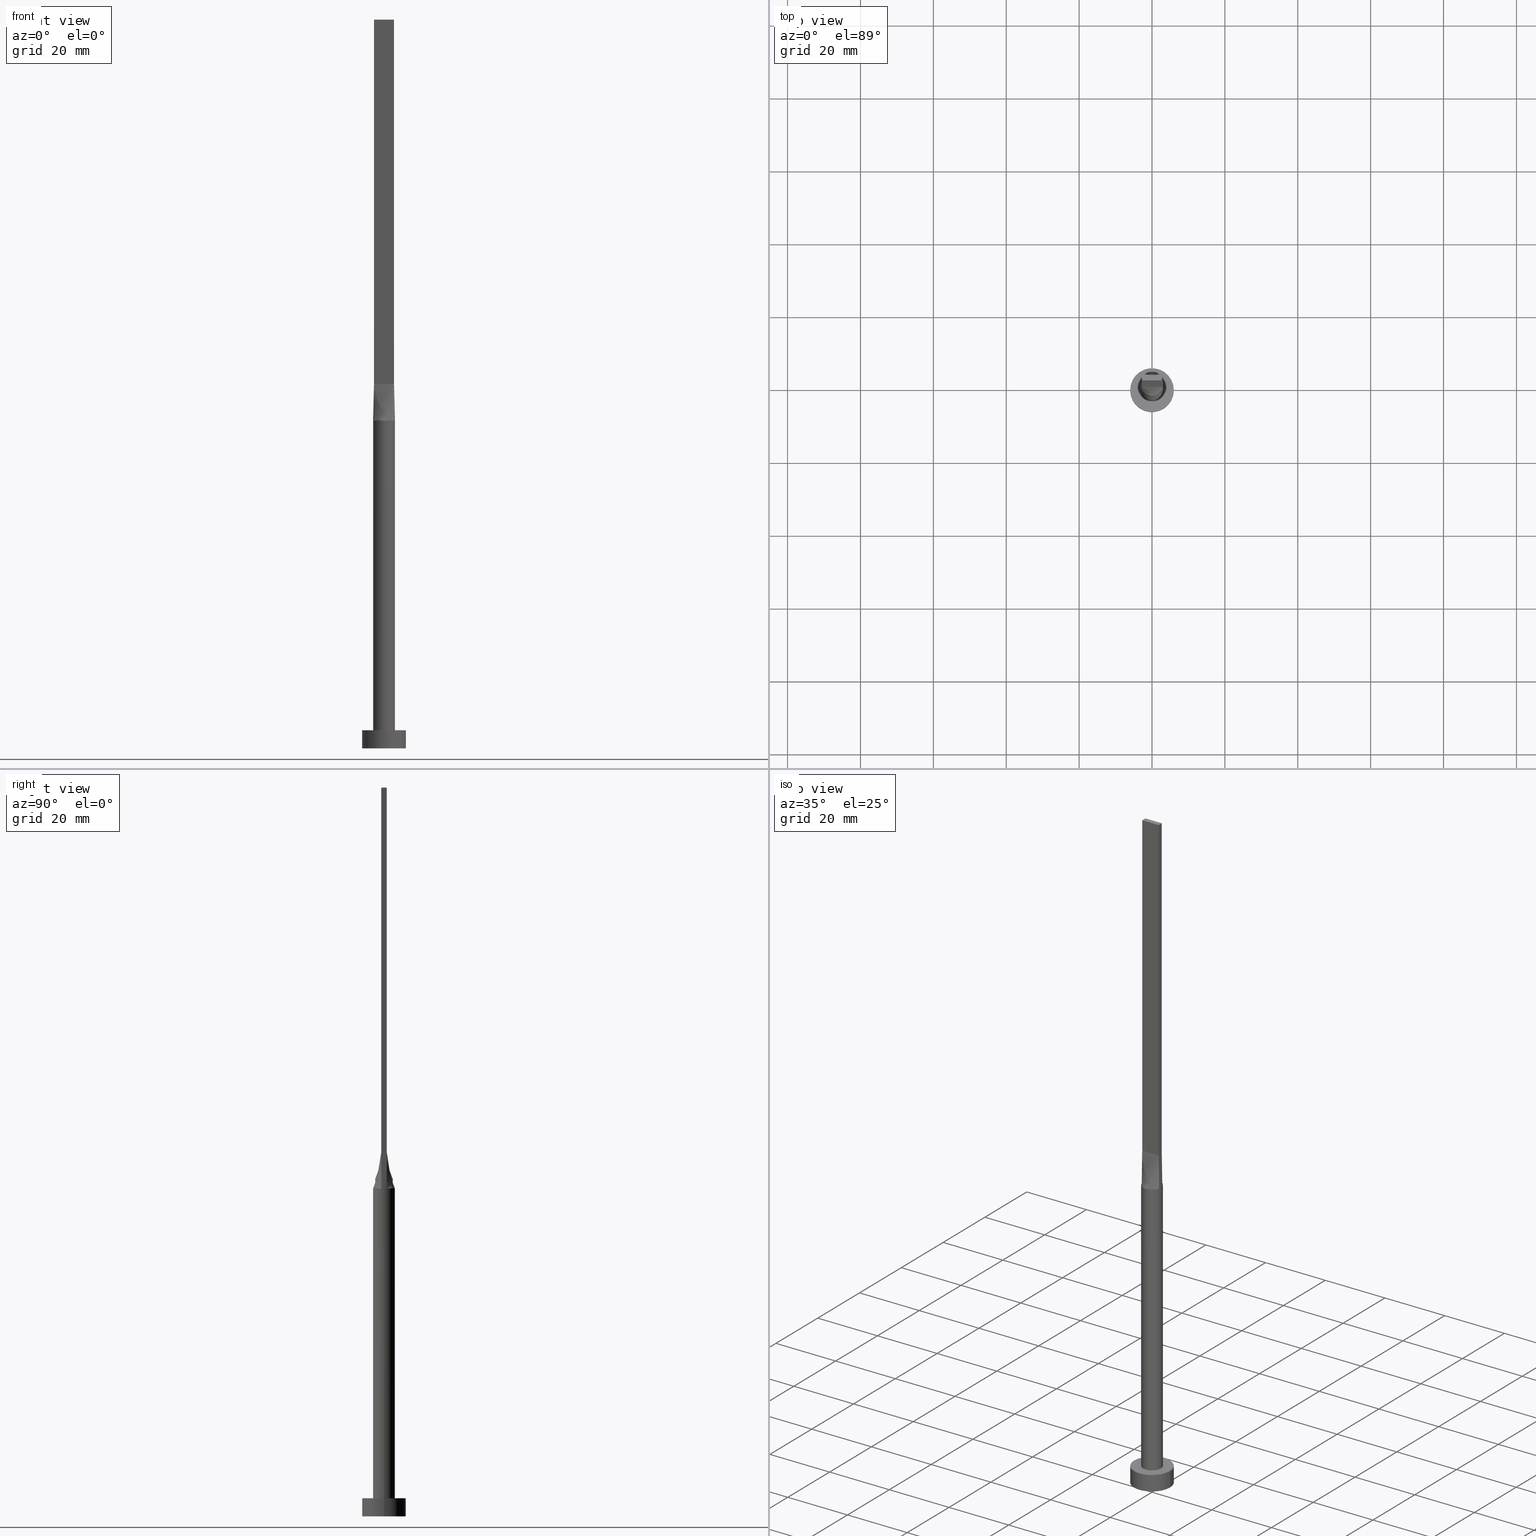
[diagram: canonical four-view strip — front | top / right | iso, engineering-drawing reading convention]
A machine part, canonical four-view strip (front | top / right | iso — engineering-drawing reading convention). The complete STEP part file that produces these views, byte-faithful:
ISO-10303-21;
HEADER;
FILE_DESCRIPTION (( 'STEP AP203' ),
    '1' );
FILE_NAME ('d9ba.STEP',
    '2023-02-13T11:39:15',
    ( '' ),
    ( '' ),
    'SwSTEP 2.0',
    'SolidWorks 2019',
    '' );
FILE_SCHEMA (( 'CONFIG_CONTROL_DESIGN' ));
ENDSEC;

DATA;
#1 = DIRECTION ( 'NONE',  ( 0.000000000000000000, 0.000000000000000000, 1.000000000000000000 ) ) ;
#2 = CARTESIAN_POINT ( 'NONE',  ( 0.2291666666666662966, 0.7500000000000003331, 100.0000000000000142 ) ) ;
#3 = DIRECTION ( 'NONE',  ( 1.000000000000000000, 0.000000000000000000, 0.000000000000000000 ) ) ;
#4 = ORIENTED_EDGE ( 'NONE', *, *, #194, .F. ) ;
#5 = CARTESIAN_POINT ( 'NONE',  ( -0.7628506052746809596, -2.924692134573154245, 90.00000000000001421 ) ) ;
#6 = CARTESIAN_POINT ( 'NONE',  ( -2.894291463713196677, 0.7893522173763264371, 90.00000000000001421 ) ) ;
#7 = EDGE_LOOP ( 'NONE', ( #388, #122, #519, #390, #51, #459 ) ) ;
#8 = ADVANCED_FACE ( 'NONE', ( #163 ), #514, .T. ) ;
#9 = CLOSED_SHELL ( 'NONE', ( #581, #8, #391, #442, #297, #436, #332, #540, #89, #272, #533, #147, #170, #230, #54 ) ) ;
#10 = CARTESIAN_POINT ( 'NONE',  ( -2.750000000000000000, -0.7499999999999994449, 100.0000000000000000 ) ) ;
#11 = DIRECTION ( 'NONE',  ( 0.000000000000000000, -1.000000000000000000, 0.000000000000000000 ) ) ;
#12 = CIRCLE ( 'NONE', #311, 3.000000000000000444 ) ;
#13 = ORIENTED_EDGE ( 'NONE', *, *, #348, .T. ) ;
#14 = LINE ( 'NONE', #339, #76 ) ;
#15 = CARTESIAN_POINT ( 'NONE',  ( 6.000000000000000888, 7.347880794884120722E-16, 0.000000000000000000 ) ) ;
#16 = PLANE ( 'NONE',  #145 ) ;
#17 = EDGE_LOOP ( 'NONE', ( #226, #577, #25, #137 ) ) ;
#18 = CARTESIAN_POINT ( 'NONE',  ( 0.2291666666666698216, -0.7499999999999995559, 100.0000000000000142 ) ) ;
#19 = COORDINATED_UNIVERSAL_TIME_OFFSET ( 1, 0, .AHEAD. ) ;
#20 = LINE ( 'NONE', #211, #446 ) ;
#21 = CARTESIAN_POINT ( 'NONE',  ( -2.894291463713196677, 0.7893522173763257710, 90.00000000000001421 ) ) ;
#22 = AXIS2_PLACEMENT_3D ( 'NONE', #56, #431, #24 ) ;
#23 = CALENDAR_DATE ( 2023, 13, 2 ) ;
#24 = DIRECTION ( 'NONE',  ( -0.000000000000000000, 0.000000000000000000, -1.000000000000000000 ) ) ;
#25 = ORIENTED_EDGE ( 'NONE', *, *, #220, .F. ) ;
#26 = CARTESIAN_POINT ( 'NONE',  ( 3.000000000000000888, -0.2678361673275873600, 90.00000000000001421 ) ) ;
#27 = SECURITY_CLASSIFICATION ( '', '', #382 ) ;
#28 = CARTESIAN_POINT ( 'NONE',  ( -2.750000000000000000, 0.7500000000000002220, 200.0000000000000000 ) ) ;
#29 = DIRECTION ( 'NONE',  ( -1.000000000000000000, 0.000000000000000000, 0.000000000000000000 ) ) ;
#30 = EDGE_CURVE ( 'NONE', #117, #336, #474, .T. ) ;
#31 = CARTESIAN_POINT ( 'NONE',  ( 0.000000000000000000, 0.000000000000000000, 90.00000000000001421 ) ) ;
#32 = APPROVAL_PERSON_ORGANIZATION ( #80, #522, #464 ) ;
#33 = CYLINDRICAL_SURFACE ( 'NONE', #500, 3.000000000000000444 ) ;
#34 = CARTESIAN_POINT ( 'NONE',  ( 2.442412046818594362, -1.765588549521970751, 90.00000000000002842 ) ) ;
#35 = DATE_AND_TIME ( #133, #111 ) ;
#36 = EDGE_CURVE ( 'NONE', #101, #415, #276, .T. ) ;
#37 = VECTOR ( 'NONE', #341, 1000.000000000000114 ) ;
#38 = ORIENTED_EDGE ( 'NONE', *, *, #106, .F. ) ;
#39 = CARTESIAN_POINT ( 'NONE',  ( 0.000000000000000000, 0.000000000000000000, 90.00000000000001421 ) ) ;
#40 = AXIS2_PLACEMENT_3D ( 'NONE', #387, #398, #173 ) ;
#41 = CARTESIAN_POINT ( 'NONE',  ( -1.447928580458858416, 2.653161878569119558, 90.00000000000004263 ) ) ;
#42 = LINE ( 'NONE', #233, #318 ) ;
#43 = APPROVAL ( #559, 'NEUR�EN�' ) ;
#44 = PERSON ( 'NEUR�EN�', 'NEUR�EN�', 'NEUR�EN�', ('NEUR�EN�'), ('NEUR�EN�'), ('NEUR�EN�') ) ;
#45 = DIRECTION ( 'NONE',  ( -1.000000000000000000, 0.000000000000000000, 0.000000000000000000 ) ) ;
#46 = CARTESIAN_POINT ( 'NONE',  ( -2.733316749964668002, 1.269511353635830453, 90.00000000000004263 ) ) ;
#47 = CARTESIAN_POINT ( 'NONE',  ( -2.750000000000000000, -0.2499999999999992506, 100.0000000000000000 ) ) ;
#48 = CARTESIAN_POINT ( 'NONE',  ( 0.000000000000000000, 0.000000000000000000, 5.000000000000000000 ) ) ;
#49 = AXIS2_PLACEMENT_3D ( 'NONE', #511, #328, #105 ) ;
#50 = CC_DESIGN_APPROVAL ( #522, ( #408 ) ) ;
#51 = ORIENTED_EDGE ( 'NONE', *, *, #82, .F. ) ;
#52 = CARTESIAN_POINT ( 'NONE',  ( -2.733316749964668446, -1.269511353635829787, 90.00000000000002842 ) ) ;
#53 = CARTESIAN_POINT ( 'NONE',  ( -2.750000000000000000, -0.4999999999999992784, 100.0000000000000000 ) ) ;
#54 = ADVANCED_FACE ( 'NONE', ( #367 ), #407, .T. ) ;
#55 = FACE_OUTER_BOUND ( 'NONE', #454, .T. ) ;
#56 = CARTESIAN_POINT ( 'NONE',  ( -2.750000000000000000, 0.7500000000000002220, 200.0000000000000000 ) ) ;
#57 = CARTESIAN_POINT ( 'NONE',  ( 2.442412046818595250, 1.765588549521970529, 90.00000000000004263 ) ) ;
#58 = LINE ( 'NONE', #10, #455 ) ;
#59 = LINE ( 'NONE', #252, #324 ) ;
#60 = VECTOR ( 'NONE', #362, 1000.000000000000000 ) ;
#61 = DIRECTION ( 'NONE',  ( 0.000000000000000000, -1.000000000000000000, 0.000000000000000000 ) ) ;
#62 = ORIENTED_EDGE ( 'NONE', *, *, #187, .T. ) ;
#63 = EDGE_CURVE ( 'NONE', #415, #338, #100, .T. ) ;
#64 = DIRECTION ( 'NONE',  ( 1.000000000000000000, -5.913830031739115543E-17, 0.000000000000000000 ) ) ;
#65 = DIRECTION ( 'NONE',  ( 0.000000000000000000, 1.000000000000000000, 0.000000000000000000 ) ) ;
#66 = ORIENTED_EDGE ( 'NONE', *, *, #204, .F. ) ;
#67 = FACE_OUTER_BOUND ( 'NONE', #401, .T. ) ;
#68 = ORIENTED_EDGE ( 'NONE', *, *, #319, .F. ) ;
#69 = UNCERTAINTY_MEASURE_WITH_UNIT (LENGTH_MEASURE( 1.000000000000000082E-05 ), #91, 'distance_accuracy_value', 'NONE');
#70 = CARTESIAN_POINT ( 'NONE',  ( 2.248179627679384840, -2.014142483996542055, 90.00000000000001421 ) ) ;
#71 = ORIENTED_EDGE ( 'NONE', *, *, #319, .T. ) ;
#72 = DIRECTION ( 'NONE',  ( -0.000000000000000000, -0.000000000000000000, -1.000000000000000000 ) ) ;
#73 = DATE_AND_TIME ( #349, #530 ) ;
#74 = CARTESIAN_POINT ( 'NONE',  ( 2.894482401701604424, 0.7894050286368272662, 90.00000000000001421 ) ) ;
#75 = LINE ( 'NONE', #28, #95 ) ;
#76 = VECTOR ( 'NONE', #113, 1000.000000000000000 ) ;
#77 = ORIENTED_EDGE ( 'NONE', *, *, #399, .F. ) ;
#78 = AXIS2_PLACEMENT_3D ( 'NONE', #576, #350, #268 ) ;
#79 = CARTESIAN_POINT ( 'NONE',  ( -2.750000000000000000, 0.7500000000000002220, 100.0000000000000000 ) ) ;
#80 = PERSON_AND_ORGANIZATION ( #44, #478 ) ;
#81 = FACE_OUTER_BOUND ( 'NONE', #164, .T. ) ;
#82 = EDGE_CURVE ( 'NONE', #415, #153, #200, .T. ) ;
#83 = B_SPLINE_SURFACE_WITH_KNOTS ( 'NONE', 3, 1, ( 
 ( #517, #245 ),
 ( #118, #381 ),
 ( #52, #417 ),
 ( #301, #298 ),
 ( #376, #547 ),
 ( #156, #330 ),
 ( #416, #108 ),
 ( #5, #507 ),
 ( #426, #292 ),
 ( #251, #18 ),
 ( #198, #369 ),
 ( #207, #378 ),
 ( #550, #333 ),
 ( #70, #209 ),
 ( #34, #483 ),
 ( #86, #392 ),
 ( #181, #132 ),
 ( #171, #355 ) ),
 .UNSPECIFIED., .F., .F., .F.,
 ( 4, 2, 2, 2, 2, 2, 2, 2, 4 ),
 ( 2, 2 ),
 ( 0.000000000000000000, 0.1250000000000000000, 0.2500000000000000000, 0.3750000000000000000, 0.5000000000000000000, 0.6250000000000000000, 0.7500000000000000000, 0.8750000000000000000, 1.000000000000000000 ),
 ( 0.000000000000000000, 1.000000000000000000 ),
 .UNSPECIFIED. ) ;
#84 = DIRECTION ( 'NONE',  ( 1.000000000000000000, -5.329070518200751394E-15, 0.000000000000000000 ) ) ;
#85 = APPROVAL_STATUS ( 'not_yet_approved' ) ;
#86 = CARTESIAN_POINT ( 'NONE',  ( 2.733316749964666670, -1.269511353635832229, 90.00000000000004263 ) ) ;
#87 = ORIENTED_EDGE ( 'NONE', *, *, #98, .T. ) ;
#88 = AXIS2_PLACEMENT_3D ( 'NONE', #90, #29, #413 ) ;
#89 = ADVANCED_FACE ( 'NONE', ( #410 ), #473, .T. ) ;
#90 = CARTESIAN_POINT ( 'NONE',  ( 2.750000000000000000, -0.7499999999999997780, 200.0000000000000000 ) ) ;
#91 =( LENGTH_UNIT ( ) NAMED_UNIT ( * ) SI_UNIT ( .MILLI., .METRE. ) );
#92 = DIRECTION ( 'NONE',  ( 1.000000000000000000, 0.000000000000000000, 0.000000000000000000 ) ) ;
#93 = CARTESIAN_POINT ( 'NONE',  ( 0.4583333333333330373, 0.7500000000000003331, 100.0000000000000142 ) ) ;
#94 = DIRECTION ( 'NONE',  ( 1.000000000000000000, 0.000000000000000000, 0.000000000000000000 ) ) ;
#95 = VECTOR ( 'NONE', #61, 1000.000000000000000 ) ;
#96 = CARTESIAN_POINT ( 'NONE',  ( 2.291666666666666519, 0.7500000000000002220, 100.0000000000000000 ) ) ;
#97 = CARTESIAN_POINT ( 'NONE',  ( -2.750000000000000000, 0.7500000000000002220, 100.0000000000000000 ) ) ;
#98 = EDGE_CURVE ( 'NONE', #185, #174, #246, .T. ) ;
#99 = CARTESIAN_POINT ( 'NONE',  ( 2.520833333333333037, 0.7500000000000002220, 100.0000000000000000 ) ) ;
#100 = LINE ( 'NONE', #237, #177 ) ;
#101 = VERTEX_POINT ( 'NONE', #448 ) ;
#102 = CARTESIAN_POINT ( 'NONE',  ( 0.3818979204996085230, 3.000000000000001332, 90.00000000000001421 ) ) ;
#103 = CARTESIAN_POINT ( 'NONE',  ( -2.963522232943966106, -0.5355060635301720495, 90.00000000000002842 ) ) ;
#104 = CARTESIAN_POINT ( 'NONE',  ( -2.750000000000000000, -0.7499999999999994449, 200.0000000000000000 ) ) ;
#105 = DIRECTION ( 'NONE',  ( 1.000000000000000000, 0.000000000000000000, -0.000000000000000000 ) ) ;
#106 = EDGE_CURVE ( 'NONE', #463, #338, #42, .T. ) ;
#107 = ORIENTED_EDGE ( 'NONE', *, *, #123, .F. ) ;
#108 = CARTESIAN_POINT ( 'NONE',  ( -0.9166666666666638541, -0.7499999999999995559, 100.0000000000000142 ) ) ;
#109 = APPLICATION_PROTOCOL_DEFINITION ( 'international standard', 'config_control_design', 1994, #293 ) ;
#110 = EDGE_LOOP ( 'NONE', ( #215, #107, #425, #515 ) ) ;
#111 = LOCAL_TIME ( 12, 39, 15.00000000000000000, #274 ) ;
#112 = CARTESIAN_POINT ( 'NONE',  ( 3.000000000000000444, 3.673940397442060361E-16, 90.00000000000001421 ) ) ;
#113 = DIRECTION ( 'NONE',  ( -0.000000000000000000, -0.000000000000000000, -1.000000000000000000 ) ) ;
#114 = COORDINATED_UNIVERSAL_TIME_OFFSET ( 1, 0, .AHEAD. ) ;
#115 = FACE_OUTER_BOUND ( 'NONE', #110, .T. ) ;
#116 = FACE_BOUND ( 'NONE', #253, .T. ) ;
#117 = VERTEX_POINT ( 'NONE', #513 ) ;
#118 = CARTESIAN_POINT ( 'NONE',  ( -2.830829925251658885, -1.022044525068633858, 90.00000000000001421 ) ) ;
#119 = DATE_AND_TIME ( #335, #294 ) ;
#120 = DIRECTION ( 'NONE',  ( -0.000000000000000000, -0.000000000000000000, -1.000000000000000000 ) ) ;
#121 = CARTESIAN_POINT ( 'NONE',  ( 2.750000000000000000, -0.7499999999999997780, 200.0000000000000000 ) ) ;
#122 = ORIENTED_EDGE ( 'NONE', *, *, #543, .T. ) ;
#123 = EDGE_CURVE ( 'NONE', #307, #190, #503, .T. ) ;
#124 = PERSON_AND_ORGANIZATION_ROLE ( 'classification_officer' ) ;
#125 = CARTESIAN_POINT ( 'NONE',  ( 2.750000000000000000, 0.7500000000000002220, 200.0000000000000000 ) ) ;
#126 = CARTESIAN_POINT ( 'NONE',  ( 2.750000000000000000, 0.7500000000000002220, 200.0000000000000000 ) ) ;
#127 = VECTOR ( 'NONE', #290, 1000.000000000000000 ) ;
#128 = ORIENTED_EDGE ( 'NONE', *, *, #180, .F. ) ;
#129 = APPLICATION_PROTOCOL_DEFINITION ( 'international standard', 'config_control_design', 1994, #217 ) ;
#130 = DIRECTION ( 'NONE',  ( 1.000000000000000000, 0.000000000000000000, 0.000000000000000000 ) ) ;
#131 = VERTEX_POINT ( 'NONE', #15 ) ;
#132 = CARTESIAN_POINT ( 'NONE',  ( 2.520833333333333481, -0.7499999999999997780, 100.0000000000000000 ) ) ;
#133 = CALENDAR_DATE ( 2023, 13, 2 ) ;
#134 = CARTESIAN_POINT ( 'NONE',  ( -1.751288851749021491, 2.458468820606022565, 89.99999999999998579 ) ) ;
#135 = EDGE_CURVE ( 'NONE', #440, #300, #257, .T. ) ;
#136 = ORIENTED_EDGE ( 'NONE', *, *, #152, .F. ) ;
#137 = ORIENTED_EDGE ( 'NONE', *, *, #449, .T. ) ;
#138 = CIRCLE ( 'NONE', #231, 6.000000000000000888 ) ;
#139 = APPROVAL_DATE_TIME ( #35, #43 ) ;
#140 = ORIENTED_EDGE ( 'NONE', *, *, #135, .T. ) ;
#141 = CARTESIAN_POINT ( 'NONE',  ( 1.604166666666666519, 0.7500000000000002220, 100.0000000000000000 ) ) ;
#142 = DIRECTION ( 'NONE',  ( 0.000000000000000000, 0.000000000000000000, 1.000000000000000000 ) ) ;
#143 = EDGE_CURVE ( 'NONE', #153, #185, #59, .T. ) ;
#144 = CARTESIAN_POINT ( 'NONE',  ( -2.894506632021299541, 0.7894116946786272626, 90.00000000000001421 ) ) ;
#145 = AXIS2_PLACEMENT_3D ( 'NONE', #389, #208, #553 ) ;
#146 = CARTESIAN_POINT ( 'NONE',  ( 2.750000000000000000, 0.7500000000000002220, 100.0000000000000000 ) ) ;
#147 = ADVANCED_FACE ( 'NONE', ( #115 ), #427, .F. ) ;
#148 = DIRECTION ( 'NONE',  ( 1.000000000000000000, 0.000000000000000000, 0.000000000000000000 ) ) ;
#149 = ORIENTED_EDGE ( 'NONE', *, *, #543, .F. ) ;
#150 = DIRECTION ( 'NONE',  ( -0.000000000000000000, -0.000000000000000000, -1.000000000000000000 ) ) ;
#151 = CARTESIAN_POINT ( 'NONE',  ( -2.830829925251659329, 1.022044525068634302, 90.00000000000005684 ) ) ;
#152 = EDGE_CURVE ( 'NONE', #338, #190, #20, .T. ) ;
#153 = VERTEX_POINT ( 'NONE', #472 ) ;
#154 = CARTESIAN_POINT ( 'NONE',  ( 3.000000000000000444, 0.2678361673275868049, 90.00000000000001421 ) ) ;
#155 = ORIENTED_EDGE ( 'NONE', *, *, #63, .T. ) ;
#156 = CARTESIAN_POINT ( 'NONE',  ( -1.751288851749022379, -2.458468820606022565, 90.00000000000001421 ) ) ;
#157 = ORIENTED_EDGE ( 'NONE', *, *, #491, .F. ) ;
#158 = CARTESIAN_POINT ( 'NONE',  ( 2.750000000000000000, 0.7500000000000002220, 100.0000000000000000 ) ) ;
#159 = ORIENTED_EDGE ( 'NONE', *, *, #348, .F. ) ;
#160 = PERSON_AND_ORGANIZATION_ROLE ( 'design_owner' ) ;
#161 = DIRECTION ( 'NONE',  ( -1.000000000000000000, -0.000000000000000000, -0.000000000000000000 ) ) ;
#162 = AXIS2_PLACEMENT_3D ( 'NONE', #337, #254, #346 ) ;
#163 = FACE_OUTER_BOUND ( 'NONE', #176, .T. ) ;
#164 = EDGE_LOOP ( 'NONE', ( #498, #560, #405, #510 ) ) ;
#165 = CARTESIAN_POINT ( 'NONE',  ( 2.750000000000000000, 0.7500000000000002220, 200.0000000000000000 ) ) ;
#166 = COORDINATED_UNIVERSAL_TIME_OFFSET ( 1, 0, .AHEAD. ) ;
#167 = CARTESIAN_POINT ( 'NONE',  ( -2.750000000000000000, -0.7499999999999994449, 200.0000000000000000 ) ) ;
#168 = EDGE_LOOP ( 'NONE', ( #149, #159, #528, #157, #506, #87 ) ) ;
#169 = DIRECTION ( 'NONE',  ( -1.000000000000000000, 0.000000000000000000, 0.000000000000000000 ) ) ;
#170 = ADVANCED_FACE ( 'NONE', ( #259 ), #383, .F. ) ;
#171 = CARTESIAN_POINT ( 'NONE',  ( 2.894291463713196677, -0.7893522173763275473, 90.00000000000001421 ) ) ;
#172 = DATE_AND_TIME ( #23, #420 ) ;
#173 = DIRECTION ( 'NONE',  ( 1.000000000000000000, 0.000000000000000000, 0.000000000000000000 ) ) ;
#174 = VERTEX_POINT ( 'NONE', #202 ) ;
#175 = CARTESIAN_POINT ( 'NONE',  ( 2.750000000000000000, -0.4999999999999992784, 100.0000000000000000 ) ) ;
#176 = EDGE_LOOP ( 'NONE', ( #444, #363, #525, #68 ) ) ;
#177 = VECTOR ( 'NONE', #495, 1000.000000000000114 ) ;
#178 = PERSON_AND_ORGANIZATION_ROLE ( 'design_supplier' ) ;
#179 = PERSON_AND_ORGANIZATION ( #44, #478 ) ;
#180 = EDGE_CURVE ( 'NONE', #307, #440, #373, .T. ) ;
#181 = CARTESIAN_POINT ( 'NONE',  ( 2.830829925251657997, -1.022044525068636078, 90.00000000000000000 ) ) ;
#182 = LINE ( 'NONE', #344, #239 ) ;
#183 = CARTESIAN_POINT ( 'NONE',  ( -2.750000000000000000, 0.7500000000000002220, 200.0000000000000000 ) ) ;
#184 = ADVANCED_BREP_SHAPE_REPRESENTATION ( 'd9ba', ( #244, #261 ), #541 ) ;
#185 = VERTEX_POINT ( 'NONE', #205 ) ;
#186 = VECTOR ( 'NONE', #465, 1000.000000000000000 ) ;
#187 = EDGE_CURVE ( 'NONE', #269, #101, #441, .T. ) ;
#188 = DIRECTION ( 'NONE',  ( 0.000000000000000000, 0.000000000000000000, 1.000000000000000000 ) ) ;
#189 = CARTESIAN_POINT ( 'NONE',  ( -2.999999999999999112, -0.2678361673275861388, 90.00000000000001421 ) ) ;
#190 = VERTEX_POINT ( 'NONE', #564 ) ;
#191 = CYLINDRICAL_SURFACE ( 'NONE', #566, 6.000000000000000888 ) ;
#192 = VECTOR ( 'NONE', #327, 1000.000000000000000 ) ;
#193 = CARTESIAN_POINT ( 'NONE',  ( -1.751288851749021491, 2.458468820606022565, 89.99999999999998579 ) ) ;
#194 = EDGE_CURVE ( 'NONE', #296, #131, #364, .T. ) ;
#195 = ORIENTED_EDGE ( 'NONE', *, *, #180, .T. ) ;
#196 = CARTESIAN_POINT ( 'NONE',  ( 2.894291463713197121, 0.7893522173763263261, 90.00000000000001421 ) ) ;
#197 = CARTESIAN_POINT ( 'NONE',  ( -2.894506632021299541, 0.7894116946786272626, 90.00000000000001421 ) ) ;
#198 = CARTESIAN_POINT ( 'NONE',  ( 0.7628506052746785171, -2.924692134573155577, 90.00000000000000000 ) ) ;
#199 = CARTESIAN_POINT ( 'NONE',  ( -2.750000000000000000, -0.7499999999999993339, 100.0000000000000000 ) ) ;
#200 = CIRCLE ( 'NONE', #284, 3.000000000000000444 ) ;
#201 = VECTOR ( 'NONE', #428, 1000.000000000000114 ) ;
#202 = CARTESIAN_POINT ( 'NONE',  ( 3.000000000000000444, 3.673940397442060361E-16, 5.000000000000000000 ) ) ;
#203 = CARTESIAN_POINT ( 'NONE',  ( 2.248179627679386172, 2.014142483996539834, 89.99999999999998579 ) ) ;
#204 = EDGE_CURVE ( 'NONE', #562, #359, #477, .T. ) ;
#205 = CARTESIAN_POINT ( 'NONE',  ( -3.000000000000000444, 0.000000000000000000, 5.000000000000000000 ) ) ;
#206 = CARTESIAN_POINT ( 'NONE',  ( 0.000000000000000000, 0.000000000000000000, 5.000000000000000000 ) ) ;
#207 = CARTESIAN_POINT ( 'NONE',  ( 1.447928580458857972, -2.653161878569119558, 90.00000000000001421 ) ) ;
#208 = DIRECTION ( 'NONE',  ( 0.000000000000000000, -1.000000000000000000, 0.000000000000000000 ) ) ;
#209 = CARTESIAN_POINT ( 'NONE',  ( 1.604166666666668961, -0.7499999999999997780, 100.0000000000000000 ) ) ;
#210 = PERSON_AND_ORGANIZATION ( #44, #478 ) ;
#211 = CARTESIAN_POINT ( 'NONE',  ( -2.750000000000000000, 0.7500000000000002220, 100.0000000000000000 ) ) ;
#212 = EDGE_CURVE ( 'NONE', #190, #314, #182, .T. ) ;
#213 = MECHANICAL_CONTEXT ( 'NONE', #293, 'mechanical' ) ;
#214 = B_SPLINE_SURFACE_WITH_KNOTS ( 'NONE', 3, 1, ( 
 ( #196, #146 ),
 ( #534, #99 ),
 ( #280, #96 ),
 ( #366, #236 ),
 ( #277, #141 ),
 ( #542, #322 ),
 ( #409, #315 ),
 ( #456, #93 ),
 ( #102, #2 ),
 ( #227, #402 ),
 ( #447, #573 ),
 ( #41, #451 ),
 ( #193, #406 ),
 ( #579, #360 ),
 ( #536, #450 ),
 ( #46, #287 ),
 ( #151, #430 ),
 ( #21, #466 ) ),
 .UNSPECIFIED., .F., .F., .F.,
 ( 4, 2, 2, 2, 2, 2, 2, 2, 4 ),
 ( 2, 2 ),
 ( 0.000000000000000000, 0.1250000000000000000, 0.2500000000000000000, 0.3750000000000000000, 0.5000000000000000000, 0.6250000000000000000, 0.7500000000000000000, 0.8750000000000000000, 1.000000000000000000 ),
 ( 0.000000000000000000, 1.000000000000000000 ),
 .UNSPECIFIED. ) ;
#215 = ORIENTED_EDGE ( 'NONE', *, *, #152, .T. ) ;
#216 = ORIENTED_EDGE ( 'NONE', *, *, #63, .F. ) ;
#217 = APPLICATION_CONTEXT ( 'configuration controlled 3d designs of mechanical parts and assemblies' ) ;
#218 = DIRECTION ( 'NONE',  ( 1.000000000000000000, 0.000000000000000000, 0.000000000000000000 ) ) ;
#219 = VECTOR ( 'NONE', #150, 1000.000000000000000 ) ;
#220 = EDGE_CURVE ( 'NONE', #300, #571, #486, .T. ) ;
#221 = B_SPLINE_SURFACE_WITH_KNOTS ( 'NONE', 3, 1, ( 
 ( #432, #508 ),
 ( #424, #175 ),
 ( #26, #394 ),
 ( #154, #380 ),
 ( #558, #505 ),
 ( #462, #158 ) ),
 .UNSPECIFIED., .F., .F., .F.,
 ( 4, 2, 4 ),
 ( 2, 2 ),
 ( 0.000000000000000000, 0.5000000000000000000, 1.000000000000000000 ),
 ( 0.000000000000000000, 1.000000000000000000 ),
 .UNSPECIFIED. ) ;
#222 = CARTESIAN_POINT ( 'NONE',  ( 0.000000000000000000, 0.000000000000000000, 0.000000000000000000 ) ) ;
#223 =( NAMED_UNIT ( * ) PLANE_ANGLE_UNIT ( ) SI_UNIT ( $, .RADIAN. ) );
#224 = CARTESIAN_POINT ( 'NONE',  ( 0.000000000000000000, 0.000000000000000000, 90.00000000000001421 ) ) ;
#225 = DIRECTION ( 'NONE',  ( -0.000000000000000000, -0.000000000000000000, -1.000000000000000000 ) ) ;
#226 = ORIENTED_EDGE ( 'NONE', *, *, #106, .T. ) ;
#227 = CARTESIAN_POINT ( 'NONE',  ( -0.3818979204996078569, 3.000000000000000888, 89.99999999999998579 ) ) ;
#228 = AXIS2_PLACEMENT_3D ( 'NONE', #206, #120, #468 ) ;
#229 = CARTESIAN_POINT ( 'NONE',  ( 0.3818979204996085230, 3.000000000000001332, 90.00000000000001421 ) ) ;
#230 = ADVANCED_FACE ( 'NONE', ( #81 ), #310, .F. ) ;
#231 = AXIS2_PLACEMENT_3D ( 'NONE', #282, #188, #3 ) ;
#232 = CARTESIAN_POINT ( 'NONE',  ( 6.000000000000000888, 7.347880794884120722E-16, 5.000000000000000000 ) ) ;
#233 = CARTESIAN_POINT ( 'NONE',  ( -2.750000000000000000, 0.7500000000000002220, 100.0000000000000000 ) ) ;
#234 = FACE_OUTER_BOUND ( 'NONE', #452, .T. ) ;
#235 = EDGE_CURVE ( 'NONE', #131, #296, #138, .T. ) ;
#236 = CARTESIAN_POINT ( 'NONE',  ( 1.833333333333333037, 0.7500000000000002220, 100.0000000000000000 ) ) ;
#237 = CARTESIAN_POINT ( 'NONE',  ( -2.822145731856598339, 0.7696761086881630520, 95.00000000000000000 ) ) ;
#238 = AXIS2_PLACEMENT_3D ( 'NONE', #479, #526, #130 ) ;
#239 = VECTOR ( 'NONE', #267, 1000.000000000000114 ) ;
#240 = CARTESIAN_POINT ( 'NONE',  ( -2.963522232943965662, 0.5355060635301726046, 89.99999999999998579 ) ) ;
#241 = ORIENTED_EDGE ( 'NONE', *, *, #491, .T. ) ;
#242 = CARTESIAN_POINT ( 'NONE',  ( -6.000000000000000888, 0.000000000000000000, 5.000000000000000000 ) ) ;
#243 = CARTESIAN_POINT ( 'NONE',  ( -2.894291463713197121, -0.7893522173763259930, 90.00000000000001421 ) ) ;
#244 = MANIFOLD_SOLID_BREP ( 'P�idat vysunut�m5', #9 ) ;
#245 = CARTESIAN_POINT ( 'NONE',  ( -2.750000000000000000, -0.7499999999999994449, 100.0000000000000000 ) ) ;
#246 = CIRCLE ( 'NONE', #485, 3.000000000000000444 ) ;
#247 = ORIENTED_EDGE ( 'NONE', *, *, #470, .T. ) ;
#248 = EDGE_CURVE ( 'NONE', #359, #562, #260, .T. ) ;
#249 = FACE_OUTER_BOUND ( 'NONE', #570, .T. ) ;
#250 = ORIENTED_EDGE ( 'NONE', *, *, #504, .T. ) ;
#251 = CARTESIAN_POINT ( 'NONE',  ( 0.3818979204996068022, -3.000000000000001332, 90.00000000000001421 ) ) ;
#252 = CARTESIAN_POINT ( 'NONE',  ( -3.000000000000000444, 0.000000000000000000, 90.00000000000001421 ) ) ;
#253 = EDGE_LOOP ( 'NONE', ( #433, #384 ) ) ;
#254 = DIRECTION ( 'NONE',  ( 0.000000000000000000, 0.000000000000000000, 1.000000000000000000 ) ) ;
#255 = EDGE_CURVE ( 'NONE', #359, #131, #497, .T. ) ;
#256 = PERSON_AND_ORGANIZATION ( #44, #478 ) ;
#257 = LINE ( 'NONE', #502, #493 ) ;
#258 = FACE_OUTER_BOUND ( 'NONE', #17, .T. ) ;
#259 = FACE_OUTER_BOUND ( 'NONE', #532, .T. ) ;
#260 = CIRCLE ( 'NONE', #443, 6.000000000000000888 ) ;
#261 = AXIS2_PLACEMENT_3D ( 'NONE', #551, #379, #393 ) ;
#262 = PERSON_AND_ORGANIZATION_ROLE ( 'creator' ) ;
#263 = CARTESIAN_POINT ( 'NONE',  ( -2.733316749964668002, 1.269511353635830453, 90.00000000000004263 ) ) ;
#264 = LINE ( 'NONE', #126, #127 ) ;
#265 = CC_DESIGN_PERSON_AND_ORGANIZATION_ASSIGNMENT ( #471, #343, ( #567 ) ) ;
#266 = CARTESIAN_POINT ( 'NONE',  ( 6.000000000000000888, 7.347880794884120722E-16, 5.000000000000000000 ) ) ;
#267 = DIRECTION ( 'NONE',  ( -0.01442753284129405511, -0.003934781683989273249, -0.9998881756422629552 ) ) ;
#268 = DIRECTION ( 'NONE',  ( 1.000000000000000000, 0.000000000000000000, 0.000000000000000000 ) ) ;
#269 = VERTEX_POINT ( 'NONE', #494 ) ;
#270 = FACE_OUTER_BOUND ( 'NONE', #7, .T. ) ;
#271 = FACE_OUTER_BOUND ( 'NONE', #168, .T. ) ;
#272 = ADVANCED_FACE ( 'NONE', ( #234 ), #214, .T. ) ;
#273 = CYLINDRICAL_SURFACE ( 'NONE', #434, 3.000000000000000444 ) ;
#274 = COORDINATED_UNIVERSAL_TIME_OFFSET ( 1, 0, .AHEAD. ) ;
#275 = CIRCLE ( 'NONE', #320, 3.000000000000000444 ) ;
#276 = B_SPLINE_CURVE_WITH_KNOTS ( 'NONE', 3,
 ( #74, #435, #345, #57, #203, #374, #569, #351, #229, #403, #524, #575, #134, #527, #480, #263, #499, #197 ),
 .UNSPECIFIED., .F., .F.,
 ( 4, 2, 2, 2, 2, 2, 2, 2, 4 ),
 ( 0.000000000000000000, 0.1250000000000000000, 0.2500000000000000000, 0.3750000000000000000, 0.5000000000000000000, 0.6250000000000000000, 0.7500000000000000000, 0.8750000000000000000, 1.000000000000000000 ),
 .UNSPECIFIED. ) ;
#277 = CARTESIAN_POINT ( 'NONE',  ( 2.248179627679386172, 2.014142483996539834, 89.99999999999998579 ) ) ;
#278 = DIRECTION ( 'NONE',  ( 1.000000000000000000, 0.000000000000000000, -0.000000000000000000 ) ) ;
#279 = DIRECTION ( 'NONE',  ( -0.000000000000000000, -0.000000000000000000, -1.000000000000000000 ) ) ;
#280 = CARTESIAN_POINT ( 'NONE',  ( 2.733316749964668446, 1.269511353635831341, 90.00000000000002842 ) ) ;
#281 = ORIENTED_EDGE ( 'NONE', *, *, #123, .T. ) ;
#282 = CARTESIAN_POINT ( 'NONE',  ( 0.000000000000000000, 0.000000000000000000, 0.000000000000000000 ) ) ;
#283 = DIRECTION ( 'NONE',  ( 1.000000000000000000, 0.000000000000000000, 0.000000000000000000 ) ) ;
#284 = AXIS2_PLACEMENT_3D ( 'NONE', #411, #1, #283 ) ;
#285 = APPROVAL_PERSON_ORGANIZATION ( #521, #43, #305 ) ;
#286 = CARTESIAN_POINT ( 'NONE',  ( 0.000000000000000000, 0.000000000000000000, 200.0000000000000000 ) ) ;
#287 = CARTESIAN_POINT ( 'NONE',  ( -2.291666666666666519, 0.7500000000000002220, 100.0000000000000000 ) ) ;
#288 = CC_DESIGN_DATE_AND_TIME_ASSIGNMENT ( #299, #568, ( #408 ) ) ;
#289 = VECTOR ( 'NONE', #329, 1000.000000000000000 ) ;
#290 = DIRECTION ( 'NONE',  ( -0.000000000000000000, -0.000000000000000000, -1.000000000000000000 ) ) ;
#291 = ORIENTED_EDGE ( 'NONE', *, *, #248, .T. ) ;
#292 = CARTESIAN_POINT ( 'NONE',  ( -0.2291666666666634655, -0.7499999999999995559, 100.0000000000000142 ) ) ;
#293 = APPLICATION_CONTEXT ( 'configuration controlled 3d designs of mechanical parts and assemblies' ) ;
#294 = LOCAL_TIME ( 12, 39, 15.00000000000000000, #19 ) ;
#295 = LINE ( 'NONE', #112, #186 ) ;
#296 = VERTEX_POINT ( 'NONE', #372 ) ;
#297 = ADVANCED_FACE ( 'NONE', ( #421 ), #501, .F. ) ;
#298 = CARTESIAN_POINT ( 'NONE',  ( -1.833333333333331261, -0.7499999999999995559, 100.0000000000000000 ) ) ;
#299 = DATE_AND_TIME ( #396, #326 ) ;
#300 = VERTEX_POINT ( 'NONE', #165 ) ;
#301 = CARTESIAN_POINT ( 'NONE',  ( -2.442412046818594806, -1.765588549521968975, 90.00000000000001421 ) ) ;
#302 = APPROVAL_STATUS ( 'not_yet_approved' ) ;
#303 = ORIENTED_EDGE ( 'NONE', *, *, #204, .T. ) ;
#304 = CARTESIAN_POINT ( 'NONE',  ( 2.750000000000000000, -0.7499999999999997780, 100.0000000000000000 ) ) ;
#305 = APPROVAL_ROLE ( '' ) ;
#306 = DIRECTION ( 'NONE',  ( -1.000000000000000000, 0.000000000000000000, 0.000000000000000000 ) ) ;
#307 = VERTEX_POINT ( 'NONE', #104 ) ;
#308 = PERSON_AND_ORGANIZATION ( #44, #478 ) ;
#309 = APPROVAL ( #302, 'NEUR�EN�' ) ;
#310 = PLANE ( 'NONE',  #88 ) ;
#311 = AXIS2_PLACEMENT_3D ( 'NONE', #395, #347, #84 ) ;
#312 = ORIENTED_EDGE ( 'NONE', *, *, #325, .T. ) ;
#313 = EDGE_CURVE ( 'NONE', #571, #338, #14, .T. ) ;
#314 = VERTEX_POINT ( 'NONE', #460 ) ;
#315 = CARTESIAN_POINT ( 'NONE',  ( 0.9166666666666664076, 0.7500000000000003331, 100.0000000000000142 ) ) ;
#316 = CARTESIAN_POINT ( 'NONE',  ( 0.000000000000000000, 0.000000000000000000, 5.000000000000000000 ) ) ;
#317 = ORIENTED_EDGE ( 'NONE', *, *, #255, .F. ) ;
#318 = VECTOR ( 'NONE', #161, 1000.000000000000000 ) ;
#319 = EDGE_CURVE ( 'NONE', #562, #296, #458, .T. ) ;
#320 = AXIS2_PLACEMENT_3D ( 'NONE', #481, #439, #218 ) ;
#321 = EDGE_LOOP ( 'NONE', ( #4, #461 ) ) ;
#322 = CARTESIAN_POINT ( 'NONE',  ( 1.145833333333333037, 0.7500000000000003331, 100.0000000000000142 ) ) ;
#323 = CARTESIAN_POINT ( 'NONE',  ( -3.000000000000000000, 0.2678361673275868049, 90.00000000000001421 ) ) ;
#324 = VECTOR ( 'NONE', #422, 1000.000000000000000 ) ;
#325 = EDGE_CURVE ( 'NONE', #190, #336, #58, .T. ) ;
#326 = LOCAL_TIME ( 12, 39, 15.00000000000000000, #114 ) ;
#327 = DIRECTION ( 'NONE',  ( -0.000000000000000000, -0.000000000000000000, -1.000000000000000000 ) ) ;
#328 = DIRECTION ( 'NONE',  ( 0.000000000000000000, 0.000000000000000000, 1.000000000000000000 ) ) ;
#329 = DIRECTION ( 'NONE',  ( 1.000000000000000000, -5.913830031739115543E-17, 0.000000000000000000 ) ) ;
#330 = CARTESIAN_POINT ( 'NONE',  ( -1.145833333333330817, -0.7499999999999995559, 100.0000000000000142 ) ) ;
#331 = CARTESIAN_POINT ( 'NONE',  ( -2.750000000000000000, -0.7499999999999994449, 200.0000000000000000 ) ) ;
#332 = ADVANCED_FACE ( 'NONE', ( #55 ), #83, .T. ) ;
#333 = CARTESIAN_POINT ( 'NONE',  ( 1.145833333333335924, -0.7499999999999996669, 100.0000000000000000 ) ) ;
#334 = AXIS2_PLACEMENT_3D ( 'NONE', #222, #529, #490 ) ;
#335 = CALENDAR_DATE ( 2023, 13, 2 ) ;
#336 = VERTEX_POINT ( 'NONE', #304 ) ;
#337 = CARTESIAN_POINT ( 'NONE',  ( 0.000000000000000000, 0.000000000000000000, 5.000000000000000000 ) ) ;
#338 = VERTEX_POINT ( 'NONE', #79 ) ;
#339 = CARTESIAN_POINT ( 'NONE',  ( -2.750000000000000000, 0.7500000000000002220, 200.0000000000000000 ) ) ;
#340 = DIRECTION ( 'NONE',  ( 5.913830031739115543E-17, 1.000000000000000000, -0.000000000000000000 ) ) ;
#341 = DIRECTION ( 'NONE',  ( -0.01442753284129401174, 0.003934781683989412894, 0.9998881756422629552 ) ) ;
#342 = ORIENTED_EDGE ( 'NONE', *, *, #325, .F. ) ;
#343 = PERSON_AND_ORGANIZATION_ROLE ( 'creator' ) ;
#344 = CARTESIAN_POINT ( 'NONE',  ( -2.822145731856598783, -0.7696761086881626079, 95.00000000000000000 ) ) ;
#345 = CARTESIAN_POINT ( 'NONE',  ( 2.733316749964668446, 1.269511353635831341, 90.00000000000002842 ) ) ;
#346 = DIRECTION ( 'NONE',  ( 1.000000000000000000, 0.000000000000000000, -0.000000000000000000 ) ) ;
#347 = DIRECTION ( 'NONE',  ( 0.000000000000000000, 0.000000000000000000, 1.000000000000000000 ) ) ;
#348 = EDGE_CURVE ( 'NONE', #117, #269, #12, .T. ) ;
#349 = CALENDAR_DATE ( 2023, 13, 2 ) ;
#350 = DIRECTION ( 'NONE',  ( 0.000000000000000000, 0.000000000000000000, 1.000000000000000000 ) ) ;
#351 = CARTESIAN_POINT ( 'NONE',  ( 0.7628506052746800714, 2.924692134573154689, 90.00000000000004263 ) ) ;
#352 = DIRECTION ( 'NONE',  ( -1.000000000000000000, 0.000000000000000000, 0.000000000000000000 ) ) ;
#353 = CC_DESIGN_PERSON_AND_ORGANIZATION_ASSIGNMENT ( #256, #262, ( #408 ) ) ;
#354 = ORIENTED_EDGE ( 'NONE', *, *, #194, .T. ) ;
#355 = CARTESIAN_POINT ( 'NONE',  ( 2.750000000000000000, -0.7499999999999997780, 100.0000000000000000 ) ) ;
#356 = PRODUCT ( 'd9ba', 'd9ba', '', ( #213 ) ) ;
#357 = ORIENTED_EDGE ( 'NONE', *, *, #36, .T. ) ;
#358 = DIRECTION ( 'NONE',  ( 0.000000000000000000, 0.000000000000000000, 1.000000000000000000 ) ) ;
#359 = VERTEX_POINT ( 'NONE', #266 ) ;
#360 = CARTESIAN_POINT ( 'NONE',  ( -1.604166666666666963, 0.7500000000000002220, 100.0000000000000000 ) ) ;
#361 = ORIENTED_EDGE ( 'NONE', *, *, #30, .F. ) ;
#362 = DIRECTION ( 'NONE',  ( -0.000000000000000000, -0.000000000000000000, -1.000000000000000000 ) ) ;
#363 = ORIENTED_EDGE ( 'NONE', *, *, #255, .T. ) ;
#364 = CIRCLE ( 'NONE', #334, 6.000000000000000888 ) ;
#365 = APPROVAL_PERSON_ORGANIZATION ( #179, #309, #563 ) ;
#366 = CARTESIAN_POINT ( 'NONE',  ( 2.442412046818595250, 1.765588549521970529, 90.00000000000004263 ) ) ;
#367 = FACE_OUTER_BOUND ( 'NONE', #554, .T. ) ;
#368 = EDGE_CURVE ( 'NONE', #314, #117, #371, .T. ) ;
#369 = CARTESIAN_POINT ( 'NONE',  ( 0.4583333333333364235, -0.7499999999999995559, 100.0000000000000000 ) ) ;
#370 = AXIS2_PLACEMENT_3D ( 'NONE', #286, #142, #278 ) ;
#371 = CIRCLE ( 'NONE', #412, 3.000000000000000444 ) ;
#372 = CARTESIAN_POINT ( 'NONE',  ( -6.000000000000000888, 0.000000000000000000, 0.000000000000000000 ) ) ;
#373 = LINE ( 'NONE', #544, #289 ) ;
#374 = CARTESIAN_POINT ( 'NONE',  ( 1.751288851749022379, 2.458468820606022565, 89.99999999999997158 ) ) ;
#375 = FACE_OUTER_BOUND ( 'NONE', #545, .T. ) ;
#376 = CARTESIAN_POINT ( 'NONE',  ( -2.248179627679386616, -2.014142483996539390, 89.99999999999998579 ) ) ;
#377 = CC_DESIGN_PERSON_AND_ORGANIZATION_ASSIGNMENT ( #518, #124, ( #27 ) ) ;
#378 = CARTESIAN_POINT ( 'NONE',  ( 0.9166666666666695162, -0.7499999999999995559, 100.0000000000000000 ) ) ;
#379 = DIRECTION ( 'NONE',  ( 0.000000000000000000, 0.000000000000000000, 1.000000000000000000 ) ) ;
#380 = CARTESIAN_POINT ( 'NONE',  ( 2.750000000000000000, 0.2500000000000009437, 100.0000000000000000 ) ) ;
#381 = CARTESIAN_POINT ( 'NONE',  ( -2.520833333333333037, -0.7499999999999994449, 100.0000000000000000 ) ) ;
#382 = SECURITY_CLASSIFICATION_LEVEL ( 'unclassified' ) ;
#383 = PLANE ( 'NONE',  #565 ) ;
#384 = ORIENTED_EDGE ( 'NONE', *, *, #552, .F. ) ;
#385 = CARTESIAN_POINT ( 'NONE',  ( 2.750000000000000000, 0.7500000000000002220, 100.0000000000000000 ) ) ;
#386 = DATE_TIME_ROLE ( 'classification_date' ) ;
#387 = CARTESIAN_POINT ( 'NONE',  ( 0.000000000000000000, 0.000000000000000000, 5.000000000000000000 ) ) ;
#388 = ORIENTED_EDGE ( 'NONE', *, *, #187, .F. ) ;
#389 = CARTESIAN_POINT ( 'NONE',  ( 2.750000000000000000, 0.7500000000000002220, 200.0000000000000000 ) ) ;
#390 = ORIENTED_EDGE ( 'NONE', *, *, #143, .F. ) ;
#391 = ADVANCED_FACE ( 'NONE', ( #375 ), #191, .T. ) ;
#392 = CARTESIAN_POINT ( 'NONE',  ( 2.291666666666667407, -0.7499999999999997780, 100.0000000000000000 ) ) ;
#393 = DIRECTION ( 'NONE',  ( 1.000000000000000000, 0.000000000000000000, 0.000000000000000000 ) ) ;
#394 = CARTESIAN_POINT ( 'NONE',  ( 2.750000000000000000, -0.2499999999999990286, 100.0000000000000000 ) ) ;
#395 = CARTESIAN_POINT ( 'NONE',  ( 0.000000000000000000, 0.000000000000000000, 90.00000000000001421 ) ) ;
#396 = CALENDAR_DATE ( 2023, 13, 2 ) ;
#397 = VECTOR ( 'NONE', #306, 1000.000000000000000 ) ;
#398 = DIRECTION ( 'NONE',  ( 0.000000000000000000, 0.000000000000000000, 1.000000000000000000 ) ) ;
#399 = EDGE_CURVE ( 'NONE', #336, #463, #546, .T. ) ;
#400 = ORIENTED_EDGE ( 'NONE', *, *, #484, .F. ) ;
#401 = EDGE_LOOP ( 'NONE', ( #303, #291 ) ) ;
#402 = CARTESIAN_POINT ( 'NONE',  ( -0.2291666666666670460, 0.7500000000000003331, 100.0000000000000142 ) ) ;
#403 = CARTESIAN_POINT ( 'NONE',  ( -0.3818979204996078569, 3.000000000000000888, 89.99999999999998579 ) ) ;
#404 = CC_DESIGN_APPROVAL ( #309, ( #567 ) ) ;
#405 = ORIENTED_EDGE ( 'NONE', *, *, #135, .F. ) ;
#406 = CARTESIAN_POINT ( 'NONE',  ( -1.145833333333333703, 0.7500000000000002220, 100.0000000000000000 ) ) ;
#407 = PLANE ( 'NONE',  #370 ) ;
#408 = PRODUCT_DEFINITION ( 'NEZN�M�', '', #567, #429 ) ;
#409 = CARTESIAN_POINT ( 'NONE',  ( 1.447928580458859305, 2.653161878569118670, 90.00000000000004263 ) ) ;
#410 = FACE_OUTER_BOUND ( 'NONE', #445, .T. ) ;
#411 = CARTESIAN_POINT ( 'NONE',  ( 0.000000000000000000, 0.000000000000000000, 90.00000000000001421 ) ) ;
#412 = AXIS2_PLACEMENT_3D ( 'NONE', #31, #578, #92 ) ;
#413 = DIRECTION ( 'NONE',  ( 0.000000000000000000, 0.000000000000000000, 1.000000000000000000 ) ) ;
#414 = CC_DESIGN_DATE_AND_TIME_ASSIGNMENT ( #73, #386, ( #27 ) ) ;
#415 = VERTEX_POINT ( 'NONE', #144 ) ;
#416 = CARTESIAN_POINT ( 'NONE',  ( -1.447928580458859749, -2.653161878569118226, 90.00000000000000000 ) ) ;
#417 = CARTESIAN_POINT ( 'NONE',  ( -2.291666666666665186, -0.7499999999999995559, 100.0000000000000000 ) ) ;
#418 = DIRECTION ( 'NONE',  ( -1.000000000000000000, 5.913830031739115543E-17, 0.000000000000000000 ) ) ;
#419 = PRODUCT_RELATED_PRODUCT_CATEGORY ( 'detail', '', ( #356 ) ) ;
#420 = LOCAL_TIME ( 12, 39, 15.00000000000000000, #467 ) ;
#421 = FACE_OUTER_BOUND ( 'NONE', #321, .T. ) ;
#422 = DIRECTION ( 'NONE',  ( -0.000000000000000000, -0.000000000000000000, -1.000000000000000000 ) ) ;
#423 = ORIENTED_EDGE ( 'NONE', *, *, #82, .T. ) ;
#424 = CARTESIAN_POINT ( 'NONE',  ( 2.963522232943966106, -0.5355060635301738259, 89.99999999999998579 ) ) ;
#425 = ORIENTED_EDGE ( 'NONE', *, *, #504, .F. ) ;
#426 = CARTESIAN_POINT ( 'NONE',  ( -0.3818979204996094667, -3.000000000000000000, 90.00000000000000000 ) ) ;
#427 = PLANE ( 'NONE',  #22 ) ;
#428 = DIRECTION ( 'NONE',  ( -0.01442753284129401174, -0.003934781683989391210, 0.9998881756422629552 ) ) ;
#429 = DESIGN_CONTEXT ( 'detailed design', #217, 'design' ) ;
#430 = CARTESIAN_POINT ( 'NONE',  ( -2.520833333333333037, 0.7500000000000002220, 100.0000000000000000 ) ) ;
#431 = DIRECTION ( 'NONE',  ( 1.000000000000000000, 0.000000000000000000, -0.000000000000000000 ) ) ;
#432 = CARTESIAN_POINT ( 'NONE',  ( 2.894291463713196677, -0.7893522173763282135, 90.00000000000001421 ) ) ;
#433 = ORIENTED_EDGE ( 'NONE', *, *, #98, .F. ) ;
#434 = AXIS2_PLACEMENT_3D ( 'NONE', #39, #279, #169 ) ;
#435 = CARTESIAN_POINT ( 'NONE',  ( 2.830829925251657997, 1.022044525068634302, 90.00000000000004263 ) ) ;
#436 = ADVANCED_FACE ( 'NONE', ( #271 ), #273, .T. ) ;
#437 = CARTESIAN_POINT ( 'NONE',  ( 2.750000000000000000, -0.7499999999999997780, 200.0000000000000000 ) ) ;
#438 = ORIENTED_EDGE ( 'NONE', *, *, #212, .T. ) ;
#439 = DIRECTION ( 'NONE',  ( 0.000000000000000000, 0.000000000000000000, 1.000000000000000000 ) ) ;
#440 = VERTEX_POINT ( 'NONE', #437 ) ;
#441 = CIRCLE ( 'NONE', #238, 3.000000000000000444 ) ;
#442 = ADVANCED_FACE ( 'NONE', ( #116, #67 ), #548, .T. ) ;
#443 = AXIS2_PLACEMENT_3D ( 'NONE', #48, #358, #148 ) ;
#444 = ORIENTED_EDGE ( 'NONE', *, *, #248, .F. ) ;
#445 = EDGE_LOOP ( 'NONE', ( #423, #241, #488, #136, #216 ) ) ;
#446 = VECTOR ( 'NONE', #11, 1000.000000000000000 ) ;
#447 = CARTESIAN_POINT ( 'NONE',  ( -0.7628506052746797383, 2.924692134573155133, 90.00000000000002842 ) ) ;
#448 = CARTESIAN_POINT ( 'NONE',  ( 2.894482401701604424, 0.7894050286368272662, 90.00000000000001421 ) ) ;
#449 = EDGE_CURVE ( 'NONE', #300, #463, #264, .T. ) ;
#450 = CARTESIAN_POINT ( 'NONE',  ( -1.833333333333333481, 0.7500000000000002220, 100.0000000000000000 ) ) ;
#451 = CARTESIAN_POINT ( 'NONE',  ( -0.9166666666666669627, 0.7500000000000002220, 100.0000000000000000 ) ) ;
#452 = EDGE_LOOP ( 'NONE', ( #357, #155, #38, #476 ) ) ;
#453 = CC_DESIGN_PERSON_AND_ORGANIZATION_ASSIGNMENT ( #308, #160, ( #356 ) ) ;
#454 = EDGE_LOOP ( 'NONE', ( #538, #482, #342, #438 ) ) ;
#455 = VECTOR ( 'NONE', #64, 1000.000000000000000 ) ;
#456 = CARTESIAN_POINT ( 'NONE',  ( 0.7628506052746800714, 2.924692134573154689, 90.00000000000004263 ) ) ;
#457 = CARTESIAN_POINT ( 'NONE',  ( -2.750000000000000000, 0.2500000000000006106, 100.0000000000000000 ) ) ;
#458 = LINE ( 'NONE', #242, #192 ) ;
#459 = ORIENTED_EDGE ( 'NONE', *, *, #36, .F. ) ;
#460 = CARTESIAN_POINT ( 'NONE',  ( -2.894489875237701959, -0.7894071376467488577, 90.00000000000001421 ) ) ;
#461 = ORIENTED_EDGE ( 'NONE', *, *, #235, .F. ) ;
#462 = CARTESIAN_POINT ( 'NONE',  ( 2.894291463713196677, 0.7893522173763277694, 90.00000000000001421 ) ) ;
#463 = VERTEX_POINT ( 'NONE', #385 ) ;
#464 = APPROVAL_ROLE ( '' ) ;
#465 = DIRECTION ( 'NONE',  ( -0.000000000000000000, -0.000000000000000000, -1.000000000000000000 ) ) ;
#466 = CARTESIAN_POINT ( 'NONE',  ( -2.750000000000000000, 0.7500000000000002220, 100.0000000000000000 ) ) ;
#467 = COORDINATED_UNIVERSAL_TIME_OFFSET ( 1, 0, .AHEAD. ) ;
#468 = DIRECTION ( 'NONE',  ( -1.000000000000000000, 0.000000000000000000, 0.000000000000000000 ) ) ;
#469 = LINE ( 'NONE', #121, #520 ) ;
#470 = EDGE_CURVE ( 'NONE', #101, #463, #561, .T. ) ;
#471 = PERSON_AND_ORGANIZATION ( #44, #478 ) ;
#472 = CARTESIAN_POINT ( 'NONE',  ( -3.000000000000000000, -1.912111867153115409E-16, 90.00000000000001421 ) ) ;
#473 = B_SPLINE_SURFACE_WITH_KNOTS ( 'NONE', 3, 1, ( 
 ( #6, #97 ),
 ( #240, #537 ),
 ( #323, #457 ),
 ( #189, #47 ),
 ( #103, #53 ),
 ( #243, #199 ) ),
 .UNSPECIFIED., .F., .F., .F.,
 ( 4, 2, 4 ),
 ( 2, 2 ),
 ( 0.000000000000000000, 0.5000000000000000000, 1.000000000000000000 ),
 ( 0.000000000000000000, 1.000000000000000000 ),
 .UNSPECIFIED. ) ;
#474 = LINE ( 'NONE', #557, #37 ) ;
#475 = CARTESIAN_POINT ( 'NONE',  ( 2.822145731856598339, 0.7696761086881640512, 95.00000000000000000 ) ) ;
#476 = ORIENTED_EDGE ( 'NONE', *, *, #470, .F. ) ;
#477 = CIRCLE ( 'NONE', #40, 6.000000000000000888 ) ;
#478 = ORGANIZATION ( 'NEUR�EN�', 'NEUR�EN�', '' ) ;
#479 = CARTESIAN_POINT ( 'NONE',  ( 0.000000000000000000, 0.000000000000000000, 90.00000000000001421 ) ) ;
#480 = CARTESIAN_POINT ( 'NONE',  ( -2.442412046818596139, 1.765588549521969641, 90.00000000000004263 ) ) ;
#481 = CARTESIAN_POINT ( 'NONE',  ( 0.000000000000000000, 0.000000000000000000, 90.00000000000001421 ) ) ;
#482 = ORIENTED_EDGE ( 'NONE', *, *, #30, .T. ) ;
#483 = CARTESIAN_POINT ( 'NONE',  ( 1.833333333333335258, -0.7499999999999997780, 100.0000000000000000 ) ) ;
#484 = EDGE_CURVE ( 'NONE', #440, #336, #469, .T. ) ;
#485 = AXIS2_PLACEMENT_3D ( 'NONE', #316, #492, #94 ) ;
#486 = LINE ( 'NONE', #125, #397 ) ;
#487 = CARTESIAN_POINT ( 'NONE',  ( -6.000000000000000888, 0.000000000000000000, 5.000000000000000000 ) ) ;
#488 = ORIENTED_EDGE ( 'NONE', *, *, #212, .F. ) ;
#489 = CARTESIAN_POINT ( 'NONE',  ( 2.750000000000000000, 0.7500000000000002220, 100.0000000000000000 ) ) ;
#490 = DIRECTION ( 'NONE',  ( 1.000000000000000000, 0.000000000000000000, 0.000000000000000000 ) ) ;
#491 = EDGE_CURVE ( 'NONE', #153, #314, #275, .T. ) ;
#492 = DIRECTION ( 'NONE',  ( 0.000000000000000000, 0.000000000000000000, 1.000000000000000000 ) ) ;
#493 = VECTOR ( 'NONE', #65, 1000.000000000000000 ) ;
#494 = CARTESIAN_POINT ( 'NONE',  ( 3.000000000000000888, 4.817174831141495148E-17, 90.00000000000001421 ) ) ;
#495 = DIRECTION ( 'NONE',  ( 0.01442753284129401174, -0.003934781683989196054, 0.9998881756422629552 ) ) ;
#496 = CIRCLE ( 'NONE', #78, 3.000000000000000444 ) ;
#497 = LINE ( 'NONE', #232, #60 ) ;
#498 = ORIENTED_EDGE ( 'NONE', *, *, #399, .T. ) ;
#499 = CARTESIAN_POINT ( 'NONE',  ( -2.830829925251659329, 1.022044525068634302, 90.00000000000005684 ) ) ;
#500 = AXIS2_PLACEMENT_3D ( 'NONE', #224, #225, #352 ) ;
#501 = PLANE ( 'NONE',  #49 ) ;
#502 = CARTESIAN_POINT ( 'NONE',  ( 2.750000000000000000, -0.7499999999999997780, 200.0000000000000000 ) ) ;
#503 = LINE ( 'NONE', #331, #219 ) ;
#504 = EDGE_CURVE ( 'NONE', #571, #307, #75, .T. ) ;
#505 = CARTESIAN_POINT ( 'NONE',  ( 2.750000000000000000, 0.5000000000000006661, 100.0000000000000000 ) ) ;
#506 = ORIENTED_EDGE ( 'NONE', *, *, #143, .T. ) ;
#507 = CARTESIAN_POINT ( 'NONE',  ( -0.4583333333333302062, -0.7499999999999995559, 100.0000000000000142 ) ) ;
#508 = CARTESIAN_POINT ( 'NONE',  ( 2.750000000000000000, -0.7499999999999997780, 100.0000000000000000 ) ) ;
#509 = VECTOR ( 'NONE', #580, 1000.000000000000000 ) ;
#510 = ORIENTED_EDGE ( 'NONE', *, *, #484, .T. ) ;
#511 = CARTESIAN_POINT ( 'NONE',  ( 0.000000000000000000, 0.000000000000000000, 0.000000000000000000 ) ) ;
#512 = APPROVAL_DATE_TIME ( #119, #522 ) ;
#513 = CARTESIAN_POINT ( 'NONE',  ( 2.894514141151844910, -0.7894138151126538494, 90.00000000000001421 ) ) ;
#514 = CYLINDRICAL_SURFACE ( 'NONE', #228, 6.000000000000000888 ) ;
#515 = ORIENTED_EDGE ( 'NONE', *, *, #313, .T. ) ;
#516 = CC_DESIGN_PERSON_AND_ORGANIZATION_ASSIGNMENT ( #210, #178, ( #567 ) ) ;
#517 = CARTESIAN_POINT ( 'NONE',  ( -2.894291463713197121, -0.7893522173763257710, 90.00000000000001421 ) ) ;
#518 = PERSON_AND_ORGANIZATION ( #44, #478 ) ;
#519 = ORIENTED_EDGE ( 'NONE', *, *, #552, .T. ) ;
#520 = VECTOR ( 'NONE', #72, 1000.000000000000000 ) ;
#521 = PERSON_AND_ORGANIZATION ( #44, #478 ) ;
#522 = APPROVAL ( #85, 'NEUR�EN�' ) ;
#523 = PRODUCT_DEFINITION_SHAPE ( 'NONE', 'NONE',  #408 ) ;
#524 = CARTESIAN_POINT ( 'NONE',  ( -0.7628506052746797383, 2.924692134573155133, 90.00000000000002842 ) ) ;
#525 = ORIENTED_EDGE ( 'NONE', *, *, #235, .T. ) ;
#526 = DIRECTION ( 'NONE',  ( 0.000000000000000000, 0.000000000000000000, 1.000000000000000000 ) ) ;
#527 = CARTESIAN_POINT ( 'NONE',  ( -2.248179627679385728, 2.014142483996540278, 89.99999999999997158 ) ) ;
#528 = ORIENTED_EDGE ( 'NONE', *, *, #368, .F. ) ;
#529 = DIRECTION ( 'NONE',  ( 0.000000000000000000, 0.000000000000000000, 1.000000000000000000 ) ) ;
#530 = LOCAL_TIME ( 12, 39, 15.00000000000000000, #166 ) ;
#531 =( NAMED_UNIT ( * ) SI_UNIT ( $, .STERADIAN. ) SOLID_ANGLE_UNIT ( ) );
#532 = EDGE_LOOP ( 'NONE', ( #312, #400, #128, #281 ) ) ;
#533 = ADVANCED_FACE ( 'NONE', ( #258 ), #16, .F. ) ;
#534 = CARTESIAN_POINT ( 'NONE',  ( 2.830829925251657997, 1.022044525068634302, 90.00000000000004263 ) ) ;
#535 = CARTESIAN_POINT ( 'NONE',  ( 0.000000000000000000, 0.000000000000000000, 5.000000000000000000 ) ) ;
#536 = CARTESIAN_POINT ( 'NONE',  ( -2.442412046818596139, 1.765588549521969641, 90.00000000000004263 ) ) ;
#537 = CARTESIAN_POINT ( 'NONE',  ( -2.750000000000000000, 0.5000000000000004441, 100.0000000000000000 ) ) ;
#538 = ORIENTED_EDGE ( 'NONE', *, *, #368, .T. ) ;
#539 = DIRECTION ( 'NONE',  ( -0.000000000000000000, -0.000000000000000000, -1.000000000000000000 ) ) ;
#540 = ADVANCED_FACE ( 'NONE', ( #249 ), #221, .T. ) ;
#541 =( GEOMETRIC_REPRESENTATION_CONTEXT ( 3 ) GLOBAL_UNCERTAINTY_ASSIGNED_CONTEXT ( ( #69 ) ) GLOBAL_UNIT_ASSIGNED_CONTEXT ( ( #91, #223, #531 ) ) REPRESENTATION_CONTEXT ( 'NONE', 'WORKASPACE' ) );
#542 = CARTESIAN_POINT ( 'NONE',  ( 1.751288851749022379, 2.458468820606022565, 89.99999999999997158 ) ) ;
#543 = EDGE_CURVE ( 'NONE', #269, #174, #295, .T. ) ;
#544 = CARTESIAN_POINT ( 'NONE',  ( -2.750000000000000000, -0.7499999999999994449, 200.0000000000000000 ) ) ;
#545 = EDGE_LOOP ( 'NONE', ( #317, #66, #71, #354 ) ) ;
#546 = LINE ( 'NONE', #489, #509 ) ;
#547 = CARTESIAN_POINT ( 'NONE',  ( -1.604166666666664520, -0.7499999999999995559, 100.0000000000000000 ) ) ;
#548 = PLANE ( 'NONE',  #162 ) ;
#549 = ORIENTED_EDGE ( 'NONE', *, *, #220, .T. ) ;
#550 = CARTESIAN_POINT ( 'NONE',  ( 1.751288851749020603, -2.458468820606023897, 90.00000000000000000 ) ) ;
#551 = CARTESIAN_POINT ( 'NONE',  ( 0.000000000000000000, 0.000000000000000000, 0.000000000000000000 ) ) ;
#552 = EDGE_CURVE ( 'NONE', #174, #185, #496, .T. ) ;
#553 = DIRECTION ( 'NONE',  ( 0.000000000000000000, -0.000000000000000000, -1.000000000000000000 ) ) ;
#554 = EDGE_LOOP ( 'NONE', ( #549, #250, #195, #140 ) ) ;
#555 = CC_DESIGN_APPROVAL ( #43, ( #27 ) ) ;
#556 = APPROVAL_DATE_TIME ( #172, #309 ) ;
#557 = CARTESIAN_POINT ( 'NONE',  ( 2.822145731856598339, -0.7696761086881637182, 95.00000000000000000 ) ) ;
#558 = CARTESIAN_POINT ( 'NONE',  ( 2.963522232943965662, 0.5355060635301733818, 90.00000000000002842 ) ) ;
#559 = APPROVAL_STATUS ( 'not_yet_approved' ) ;
#560 = ORIENTED_EDGE ( 'NONE', *, *, #449, .F. ) ;
#561 = LINE ( 'NONE', #475, #201 ) ;
#562 = VERTEX_POINT ( 'NONE', #487 ) ;
#563 = APPROVAL_ROLE ( '' ) ;
#564 = CARTESIAN_POINT ( 'NONE',  ( -2.750000000000000000, -0.7499999999999994449, 100.0000000000000000 ) ) ;
#565 = AXIS2_PLACEMENT_3D ( 'NONE', #167, #340, #418 ) ;
#566 = AXIS2_PLACEMENT_3D ( 'NONE', #535, #539, #45 ) ;
#567 = PRODUCT_DEFINITION_FORMATION_WITH_SPECIFIED_SOURCE ( 'LIBOVOLN�', '', #356, .NOT_KNOWN. ) ;
#568 = DATE_TIME_ROLE ( 'creation_date' ) ;
#569 = CARTESIAN_POINT ( 'NONE',  ( 1.447928580458859305, 2.653161878569118670, 90.00000000000004263 ) ) ;
#570 = EDGE_LOOP ( 'NONE', ( #13, #62, #247, #77, #361 ) ) ;
#571 = VERTEX_POINT ( 'NONE', #183 ) ;
#572 = SHAPE_DEFINITION_REPRESENTATION ( #523, #184 ) ;
#573 = CARTESIAN_POINT ( 'NONE',  ( -0.4583333333333337034, 0.7500000000000003331, 100.0000000000000000 ) ) ;
#574 = CC_DESIGN_SECURITY_CLASSIFICATION ( #27, ( #567 ) ) ;
#575 = CARTESIAN_POINT ( 'NONE',  ( -1.447928580458858416, 2.653161878569119558, 90.00000000000004263 ) ) ;
#576 = CARTESIAN_POINT ( 'NONE',  ( 0.000000000000000000, 0.000000000000000000, 5.000000000000000000 ) ) ;
#577 = ORIENTED_EDGE ( 'NONE', *, *, #313, .F. ) ;
#578 = DIRECTION ( 'NONE',  ( 0.000000000000000000, 0.000000000000000000, 1.000000000000000000 ) ) ;
#579 = CARTESIAN_POINT ( 'NONE',  ( -2.248179627679385728, 2.014142483996540278, 89.99999999999997158 ) ) ;
#580 = DIRECTION ( 'NONE',  ( -0.000000000000000000, 1.000000000000000000, -0.000000000000000000 ) ) ;
#581 = ADVANCED_FACE ( 'NONE', ( #270 ), #33, .T. ) ;
ENDSEC;
END-ISO-10303-21;
